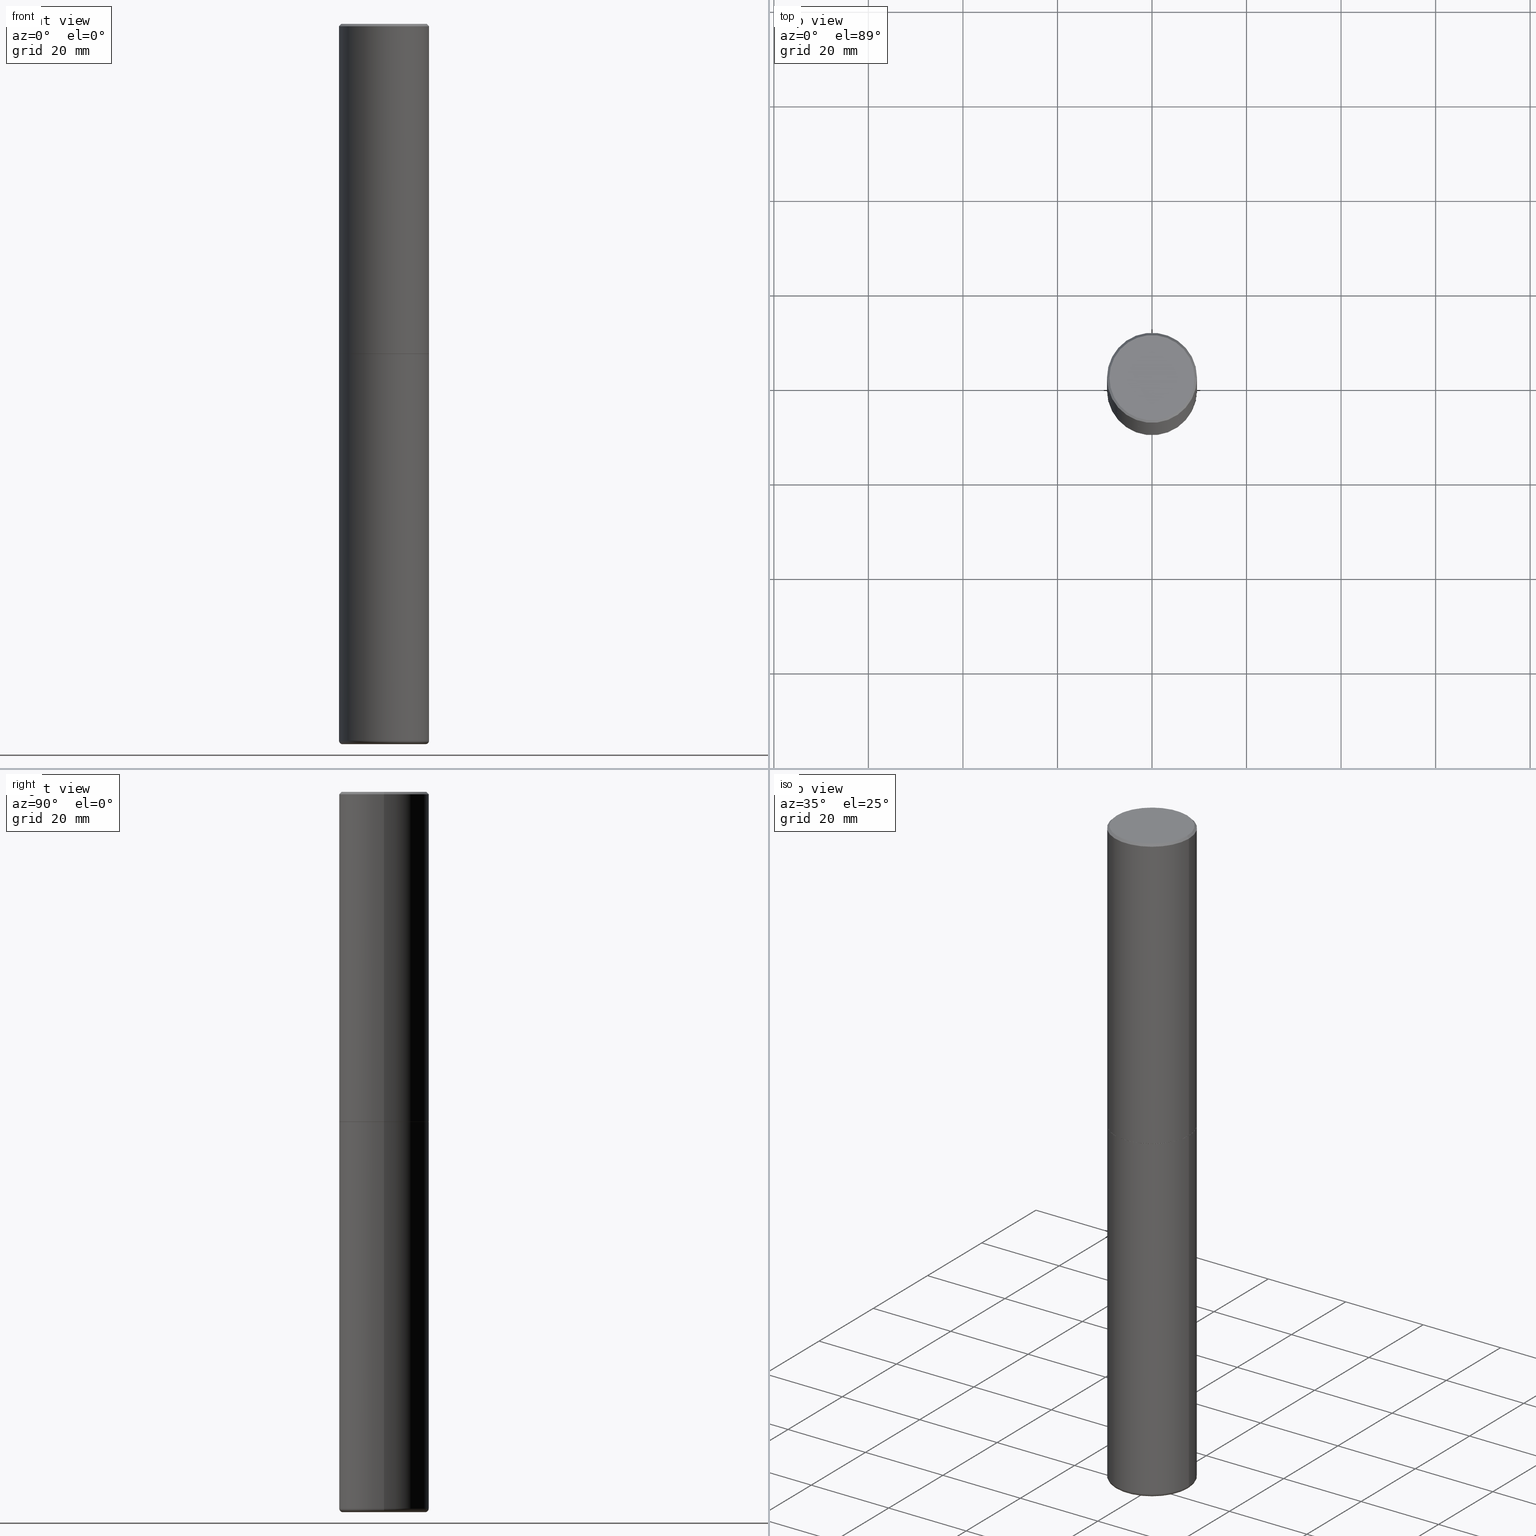
[diagram: canonical four-view strip — front | top / right | iso, engineering-drawing reading convention]
A machine part, canonical four-view strip (front | top / right | iso — engineering-drawing reading convention). The complete STEP part file that produces these views, byte-faithful:
ISO-10303-21;
HEADER;
FILE_DESCRIPTION (( 'STEP AP203' ),
    '1' );
FILE_NAME ('32571.STEP',
    '2022-04-26T19:38:33',
    ( '' ),
    ( '' ),
    'SwSTEP 2.0',
    'SolidWorks 2022',
    '' );
FILE_SCHEMA (( 'CONFIG_CONTROL_DESIGN' ));
ENDSEC;

DATA;
#1 = ORIENTED_EDGE ( 'NONE', *, *, #305, .F. ) ;
#2 = CARTESIAN_POINT ( 'NONE',  ( -0.3549999999999997602, 2.513866563967053491E-15, 4.268512490082953109E-18 ) ) ;
#3 = FACE_OUTER_BOUND ( 'NONE', #432, .T. ) ;
#4 = EDGE_CURVE ( 'NONE', #372, #195, #384, .T. ) ;
#5 = CONICAL_SURFACE ( 'NONE', #62, 0.3739999999999999991, 0.7853981633972775267 ) ;
#6 = DIRECTION ( 'NONE',  ( 1.000000000000000000, -6.982962677686266711E-15, 4.876176775795935793E-29 ) ) ;
#7 = CARTESIAN_POINT ( 'NONE',  ( 0.3750000000000000555, -1.221669320461216002E-14, -2.749000000000000554 ) ) ;
#8 = APPROVAL_DATE_TIME ( #313, #375 ) ;
#9 = ORIENTED_EDGE ( 'NONE', *, *, #211, .F. ) ;
#10 = VERTEX_POINT ( 'NONE', #377 ) ;
#11 = DIRECTION ( 'NONE',  ( 0.000000000000000000, 0.000000000000000000, 1.000000000000000000 ) ) ;
#12 = DIRECTION ( 'NONE',  ( 1.000000000000000000, -6.982962677686266711E-15, 0.000000000000000000 ) ) ;
#13 = AXIS2_PLACEMENT_3D ( 'NONE', #69, #159, #275 ) ;
#14 = PERSON_AND_ORGANIZATION_ROLE ( 'creator' ) ;
#15 = FACE_OUTER_BOUND ( 'NONE', #133, .T. ) ;
#16 = EDGE_CURVE ( 'NONE', #306, #195, #367, .T. ) ;
#17 = LOCAL_TIME ( 15, 38, 33.00000000000000000, #48 ) ;
#18 = DATE_AND_TIME ( #182, #17 ) ;
#19 = ADVANCED_FACE ( 'NONE', ( #315 ), #246, .F. ) ;
#20 = CARTESIAN_POINT ( 'NONE',  ( -0.3444764278068836449, -1.854340604125513887E-14, -5.999995430854690781 ) ) ;
#21 = CARTESIAN_POINT ( 'NONE',  ( -0.3749999999999997780, -1.817960833379320048E-14, -5.969999999999999751 ) ) ;
#22 = APPLICATION_PROTOCOL_DEFINITION ( 'international standard', 'config_control_design', 1994, #271 ) ;
#23 = DIRECTION ( 'NONE',  ( -2.445468806185136597E-29, 3.491481338843145583E-15, 1.000000000000000000 ) ) ;
#24 = AXIS2_PLACEMENT_3D ( 'NONE', #318, #242, #149 ) ;
#25 = CARTESIAN_POINT ( 'NONE',  ( 4.890937612370292426E-31, -6.982962677686317493E-17, -0.02000000000000007674 ) ) ;
#26 = ORIENTED_EDGE ( 'NONE', *, *, #141, .T. ) ;
#27 = CC_DESIGN_DATE_AND_TIME_ASSIGNMENT ( #151, #216, ( #132 ) ) ;
#28 = FACE_OUTER_BOUND ( 'NONE', #314, .T. ) ;
#29 = CIRCLE ( 'NONE', #338, 0.3750000000000000555 ) ;
#30 = CARTESIAN_POINT ( 'NONE',  ( -0.3739999999999999991, -6.944143850075879115E-15, -2.750000000000000888 ) ) ;
#31 = DESIGN_CONTEXT ( 'detailed design', #271, 'design' ) ;
#32 = EDGE_LOOP ( 'NONE', ( #111, #383, #127, #162 ) ) ;
#33 = VERTEX_POINT ( 'NONE', #2 ) ;
#34 = DIRECTION ( 'NONE',  ( 0.9998476951563914916, -6.920387862090554779E-15, -0.01745240643727449803 ) ) ;
#35 = VECTOR ( 'NONE', #241, 39.37007874015748143 ) ;
#36 = VECTOR ( 'NONE', #163, 39.37007874015748143 ) ;
#37 = ORIENTED_EDGE ( 'NONE', *, *, #240, .F. ) ;
#38 = DIRECTION ( 'NONE',  ( 1.000000000000000000, -6.982962677686266711E-15, 0.000000000000000000 ) ) ;
#39 = CC_DESIGN_PERSON_AND_ORGANIZATION_ASSIGNMENT ( #253, #353, ( #233 ) ) ;
#40 = CARTESIAN_POINT ( 'NONE',  ( 0.3549999999999997602, -2.538996582575039076E-15, 4.268512490117958041E-18 ) ) ;
#41 = DIRECTION ( 'NONE',  ( -1.000000000000000000, 6.982962677686266711E-15, 0.000000000000000000 ) ) ;
#42 = CIRCLE ( 'NONE', #316, 0.3750000000000000555 ) ;
#43 = ORIENTED_EDGE ( 'NONE', *, *, #323, .T. ) ;
#44 = DIRECTION ( 'NONE',  ( -2.445468806185136877E-29, 3.491481338843145188E-15, 1.000000000000000000 ) ) ;
#45 = VERTEX_POINT ( 'NONE', #40 ) ;
#46 = CARTESIAN_POINT ( 'NONE',  ( 2.478951750578623026E-15, 0.3549999999999997602, -1.237341619044265638E-15 ) ) ;
#47 = EDGE_CURVE ( 'NONE', #195, #129, #342, .T. ) ;
#48 = COORDINATED_UNIVERSAL_TIME_OFFSET ( 5, 0, .BEHIND. ) ;
#49 = DIRECTION ( 'NONE',  ( 1.000000000000000000, -6.982962677686265922E-15, 4.876176775795935793E-29 ) ) ;
#50 = CYLINDRICAL_SURFACE ( 'NONE', #416, 0.3749999999999998890 ) ;
#51 = CALENDAR_DATE ( 2022, 26, 4 ) ;
#52 = PRODUCT_DEFINITION_SHAPE ( 'NONE', 'NONE',  #132 ) ;
#53 = CARTESIAN_POINT ( 'NONE',  ( 0.3444764278068836449, -2.331215192322190793E-14, -5.999995430854690781 ) ) ;
#54 = PERSON_AND_ORGANIZATION ( #282, #248 ) ;
#55 = CARTESIAN_POINT ( 'NONE',  ( 0.3749999999999996669, -2.642516375941185662E-15, -0.02000000000000007674 ) ) ;
#56 = VECTOR ( 'NONE', #71, 39.37007874015748143 ) ;
#57 = VERTEX_POINT ( 'NONE', #378 ) ;
#58 = EDGE_CURVE ( 'NONE', #341, #179, #168, .T. ) ;
#59 = LOCAL_TIME ( 15, 38, 33.00000000000000000, #389 ) ;
#60 = DIRECTION ( 'NONE',  ( -2.445468806185136597E-29, 3.491481338843145583E-15, 1.000000000000000000 ) ) ;
#61 = DIRECTION ( 'NONE',  ( -2.445468806185136597E-29, 3.491481338843145583E-15, 1.000000000000000000 ) ) ;
#62 = AXIS2_PLACEMENT_3D ( 'NONE', #399, #85, #184 ) ;
#63 = EDGE_CURVE ( 'NONE', #306, #267, #442, .T. ) ;
#64 = PRODUCT_DEFINITION_FORMATION_WITH_SPECIFIED_SOURCE ( 'ANY', '', #120, .NOT_KNOWN. ) ;
#65 = ORIENTED_EDGE ( 'NONE', *, *, #58, .T. ) ;
#66 = EDGE_LOOP ( 'NONE', ( #198, #413, #190 ) ) ;
#67 = CARTESIAN_POINT ( 'NONE',  ( -0.3450000000000000289, -1.839277115452122915E-14, -5.969999999999999751 ) ) ;
#68 = ORIENTED_EDGE ( 'NONE', *, *, #211, .T. ) ;
#69 = CARTESIAN_POINT ( 'NONE',  ( -1.043851414335219820E-46, 1.490343170380447200E-32, 4.268512490100411279E-18 ) ) ;
#70 = ADVANCED_FACE ( 'NONE', ( #374 ), #135, .T. ) ;
#71 = DIRECTION ( 'NONE',  ( -2.445468806185136877E-29, 3.491481338843145188E-15, 1.000000000000000000 ) ) ;
#72 = CARTESIAN_POINT ( 'NONE',  ( -0.3749999999999996669, 2.548781377355484352E-15, -0.02000000000000007674 ) ) ;
#73 = FACE_OUTER_BOUND ( 'NONE', #376, .T. ) ;
#74 = CARTESIAN_POINT ( 'NONE',  ( 1.465921931284023718E-28, -2.092627166218079772E-14, -5.993982572441084677 ) ) ;
#75 = AXIS2_PLACEMENT_3D ( 'NONE', #270, #201, #346 ) ;
#76 = VECTOR ( 'NONE', #34, 39.37007874015747433 ) ;
#77 = ORIENTED_EDGE ( 'NONE', *, *, #146, .T. ) ;
#78 = AXIS2_PLACEMENT_3D ( 'NONE', #215, #291, #41 ) ;
#79 = EDGE_LOOP ( 'NONE', ( #281, #225, #174, #366 ) ) ;
#80 = COORDINATED_UNIVERSAL_TIME_OFFSET ( 5, 0, .BEHIND. ) ;
#81 = FACE_OUTER_BOUND ( 'NONE', #354, .T. ) ;
#82 = EDGE_CURVE ( 'NONE', #45, #33, #284, .T. ) ;
#83 = MECHANICAL_CONTEXT ( 'NONE', #176, 'mechanical' ) ;
#84 = PLANE ( 'NONE',  #173 ) ;
#85 = DIRECTION ( 'NONE',  ( -2.445468806185136597E-29, 3.491481338843145583E-15, 1.000000000000000000 ) ) ;
#86 =( NAMED_UNIT ( * ) PLANE_ANGLE_UNIT ( ) SI_UNIT ( $, .RADIAN. ) );
#87 = DIRECTION ( 'NONE',  ( -6.982962677686266711E-15, -1.000000000000000000, 3.491481338843145583E-15 ) ) ;
#88 = PERSON_AND_ORGANIZATION ( #282, #248 ) ;
#89 = LINE ( 'NONE', #398, #137 ) ;
#90 = DIRECTION ( 'NONE',  ( -0.7071067811865447972, 2.468850131082228267E-15, -0.7071067811865502373 ) ) ;
#91 = AXIS2_PLACEMENT_3D ( 'NONE', #100, #411, #6 ) ;
#92 = VECTOR ( 'NONE', #90, 39.37007874015748143 ) ;
#93 = ADVANCED_FACE ( 'NONE', ( #130 ), #206, .T. ) ;
#94 = EDGE_CURVE ( 'NONE', #405, #169, #244, .T. ) ;
#95 = ORIENTED_EDGE ( 'NONE', *, *, #382, .F. ) ;
#96 = CIRCLE ( 'NONE', #24, 0.3749999999999996669 ) ;
#97 = LOCAL_TIME ( 15, 38, 33.00000000000000000, #429 ) ;
#98 = ORIENTED_EDGE ( 'NONE', *, *, #263, .T. ) ;
#99 = ORIENTED_EDGE ( 'NONE', *, *, #94, .F. ) ;
#100 = CARTESIAN_POINT ( 'NONE',  ( 0.000000000000000000, 0.000000000000000000, 0.000000000000000000 ) ) ;
#101 = ORIENTED_EDGE ( 'NONE', *, *, #146, .F. ) ;
#102 = CARTESIAN_POINT ( 'NONE',  ( 0.3749999999999998335, -2.618611004132348439E-15, 1.828566290923475082E-29 ) ) ;
#103 = APPROVAL ( #260, 'UNSPECIFIED' ) ;
#104 = AXIS2_PLACEMENT_3D ( 'NONE', #254, #325, #347 ) ;
#105 = SHAPE_DEFINITION_REPRESENTATION ( #52, #365 ) ;
#106 = DIRECTION ( 'NONE',  ( -2.445468806185136597E-29, 3.491481338843145583E-15, 1.000000000000000000 ) ) ;
#107 = DIRECTION ( 'NONE',  ( 2.445468806185136597E-29, -3.491481338843145583E-15, -1.000000000000000000 ) ) ;
#108 = ORIENTED_EDGE ( 'NONE', *, *, #323, .F. ) ;
#109 = AXIS2_PLACEMENT_3D ( 'NONE', #437, #199, #38 ) ;
#110 = AXIS2_PLACEMENT_3D ( 'NONE', #25, #397, #297 ) ;
#111 = ORIENTED_EDGE ( 'NONE', *, *, #220, .T. ) ;
#112 = PLANE ( 'NONE',  #208 ) ;
#113 = CC_DESIGN_PERSON_AND_ORGANIZATION_ASSIGNMENT ( #257, #396, ( #132 ) ) ;
#114 = PERSON_AND_ORGANIZATION ( #282, #248 ) ;
#115 = CIRCLE ( 'NONE', #231, 0.3739999999999999991 ) ;
#116 = DIRECTION ( 'NONE',  ( 1.000000000000000000, -6.982962677686266711E-15, 0.000000000000000000 ) ) ;
#117 = CARTESIAN_POINT ( 'NONE',  ( -0.3739999999999999991, -6.938845395727655924E-15, -2.750000000000000888 ) ) ;
#118 = PERSON_AND_ORGANIZATION ( #282, #248 ) ;
#119 = DIRECTION ( 'NONE',  ( -0.9998476951563914916, 6.920964387254067832E-15, -0.01745240643727449803 ) ) ;
#120 = PRODUCT ( '32571', '32571', '', ( #83 ) ) ;
#121 = PERSON_AND_ORGANIZATION_ROLE ( 'design_owner' ) ;
#122 = DIRECTION ( 'NONE',  ( 1.000000000000000000, -6.982962677686266711E-15, 4.876231632511991546E-29 ) ) ;
#123 = FACE_OUTER_BOUND ( 'NONE', #161, .T. ) ;
#124 = FACE_OUTER_BOUND ( 'NONE', #400, .T. ) ;
#125 = ADVANCED_FACE ( 'NONE', ( #197 ), #207, .T. ) ;
#126 = ORIENTED_EDGE ( 'NONE', *, *, #16, .T. ) ;
#127 = ORIENTED_EDGE ( 'NONE', *, *, #16, .F. ) ;
#128 = UNCERTAINTY_MEASURE_WITH_UNIT (LENGTH_MEASURE( 1.000000000000000082E-05 ), #185, 'distance_accuracy_value', 'NONE');
#129 = VERTEX_POINT ( 'NONE', #381 ) ;
#130 = FACE_OUTER_BOUND ( 'NONE', #32, .T. ) ;
#131 = CIRCLE ( 'NONE', #110, 0.3749999999999996669 ) ;
#132 = PRODUCT_DEFINITION ( 'UNKNOWN', '', #64, #31 ) ;
#133 = EDGE_LOOP ( 'NONE', ( #415, #387, #65, #95 ) ) ;
#134 = DIRECTION ( 'NONE',  ( -2.445468806185136597E-29, 3.491481338843145583E-15, 1.000000000000000000 ) ) ;
#135 = CYLINDRICAL_SURFACE ( 'NONE', #91, 0.3749999999999998890 ) ;
#136 = DIRECTION ( 'NONE',  ( -1.000000000000000000, 6.982962677686265922E-15, -4.876176775795935793E-29 ) ) ;
#137 = VECTOR ( 'NONE', #431, 39.37007874015748143 ) ;
#138 = DATE_TIME_ROLE ( 'classification_date' ) ;
#139 = CARTESIAN_POINT ( 'NONE',  ( 1.606634848428436349E-18, -2.092787829702907951E-14, -5.993982572441084677 ) ) ;
#140 = ADVANCED_FACE ( 'NONE', ( #73 ), #268, .T. ) ;
#141 = EDGE_CURVE ( 'NONE', #245, #10, #348, .T. ) ;
#142 = ORIENTED_EDGE ( 'NONE', *, *, #255, .T. ) ;
#143 = ORIENTED_EDGE ( 'NONE', *, *, #4, .F. ) ;
#144 = LENGTH_MEASURE_WITH_UNIT ( LENGTH_MEASURE( 0.02539999999999999897 ), #183 );
#145 = CARTESIAN_POINT ( 'NONE',  ( 0.3749999999999997780, -2.346275459702592304E-14, -5.969999999999999751 ) ) ;
#146 = EDGE_CURVE ( 'NONE', #129, #267, #187, .T. ) ;
#147 = CARTESIAN_POINT ( 'NONE',  ( -0.3749999999999998335, 2.664535259100374514E-15, -1.844600658845588757E-29 ) ) ;
#148 = CC_DESIGN_APPROVAL ( #375, ( #233 ) ) ;
#149 = DIRECTION ( 'NONE',  ( 1.000000000000000000, -6.982962677686266711E-15, 0.000000000000000000 ) ) ;
#150 = DIRECTION ( 'NONE',  ( 2.445468806185136597E-29, -3.491481338843145583E-15, -1.000000000000000000 ) ) ;
#151 = DATE_AND_TIME ( #51, #97 ) ;
#152 = CIRCLE ( 'NONE', #401, 0.3444764278068817021 ) ;
#153 = DIRECTION ( 'NONE',  ( 1.000000000000000000, -6.982962677686266711E-15, 4.876176775795935793E-29 ) ) ;
#154 = LOCAL_TIME ( 15, 38, 33.00000000000000000, #80 ) ;
#155 = DIRECTION ( 'NONE',  ( -2.445468806185136597E-29, 3.491481338843145583E-15, 1.000000000000000000 ) ) ;
#156 = ORIENTED_EDGE ( 'NONE', *, *, #240, .T. ) ;
#157 = CIRCLE ( 'NONE', #194, 0.02999999999999974909 ) ;
#158 = FACE_OUTER_BOUND ( 'NONE', #300, .T. ) ;
#159 = DIRECTION ( 'NONE',  ( -2.445468806185136597E-29, 3.491481338843145583E-15, 1.000000000000000000 ) ) ;
#160 = EDGE_CURVE ( 'NONE', #33, #310, #261, .T. ) ;
#161 = EDGE_LOOP ( 'NONE', ( #156, #232, #9, #403 ) ) ;
#162 = ORIENTED_EDGE ( 'NONE', *, *, #289, .F. ) ;
#163 = DIRECTION ( 'NONE',  ( -0.7071067811864267805, 7.493145998869918709E-15, 0.7071067811866682540 ) ) ;
#164 = CLOSED_SHELL ( 'NONE', ( #203, #265, #424, #125, #350, #298, #426, #380 ) ) ;
#165 = CIRCLE ( 'NONE', #227, 0.3444764278068817021 ) ;
#166 = CALENDAR_DATE ( 2022, 26, 4 ) ;
#167 = ORIENTED_EDGE ( 'NONE', *, *, #410, .T. ) ;
#168 = LINE ( 'NONE', #102, #56 ) ;
#169 = VERTEX_POINT ( 'NONE', #53 ) ;
#170 = DIRECTION ( 'NONE',  ( -2.438088387897960049E-29, 3.491481338843145188E-15, 1.000000000000000000 ) ) ;
#171 = AXIS2_PLACEMENT_3D ( 'NONE', #222, #150, #299 ) ;
#172 = EDGE_CURVE ( 'NONE', #33, #45, #439, .T. ) ;
#173 = AXIS2_PLACEMENT_3D ( 'NONE', #217, #170, #49 ) ;
#174 = ORIENTED_EDGE ( 'NONE', *, *, #160, .T. ) ;
#175 = ORIENTED_EDGE ( 'NONE', *, *, #47, .T. ) ;
#176 = APPLICATION_CONTEXT ( 'configuration controlled 3d designs of mechanical parts and assemblies' ) ;
#177 = EDGE_CURVE ( 'NONE', #372, #169, #152, .T. ) ;
#178 = DIRECTION ( 'NONE',  ( -2.445468806185136597E-29, 3.491481338843145583E-15, 1.000000000000000000 ) ) ;
#179 = VERTEX_POINT ( 'NONE', #55 ) ;
#180 = APPROVAL_STATUS ( 'not_yet_approved' ) ;
#181 = CARTESIAN_POINT ( 'NONE',  ( 6.725039217009127883E-29, -9.601573681818654592E-15, -2.750000000000000888 ) ) ;
#182 = CALENDAR_DATE ( 2022, 26, 4 ) ;
#183 =( LENGTH_UNIT ( ) NAMED_UNIT ( * ) SI_UNIT ( $, .METRE. ) );
#184 = DIRECTION ( 'NONE',  ( 1.000000000000000000, -6.982962677686265133E-15, 0.000000000000000000 ) ) ;
#185 =( CONVERSION_BASED_UNIT ( 'INCH', #144 ) LENGTH_UNIT ( ) NAMED_UNIT ( #250 ) );
#186 = CARTESIAN_POINT ( 'NONE',  ( 6.725039217009127883E-29, -9.601573681818654592E-15, -2.750000000000000888 ) ) ;
#187 = CIRCLE ( 'NONE', #332, 0.3750000000000000555 ) ;
#188 = FACE_OUTER_BOUND ( 'NONE', #212, .T. ) ;
#189 = CC_DESIGN_APPROVAL ( #103, ( #132 ) ) ;
#190 = ORIENTED_EDGE ( 'NONE', *, *, #177, .F. ) ;
#191 = CARTESIAN_POINT ( 'NONE',  ( -1.606634848135274182E-18, -2.092787829702907951E-14, -5.993982572441084677 ) ) ;
#192 = DIRECTION ( 'NONE',  ( 1.000000000000000000, -6.982962677686267499E-15, 4.883557194083112901E-29 ) ) ;
#193 = CC_DESIGN_PERSON_AND_ORGANIZATION_ASSIGNMENT ( #118, #121, ( #120 ) ) ;
#194 = AXIS2_PLACEMENT_3D ( 'NONE', #427, #87, #393 ) ;
#195 = VERTEX_POINT ( 'NONE', #21 ) ;
#196 = ORIENTED_EDGE ( 'NONE', *, *, #141, .F. ) ;
#197 = FACE_OUTER_BOUND ( 'NONE', #79, .T. ) ;
#198 = ORIENTED_EDGE ( 'NONE', *, *, #255, .F. ) ;
#199 = DIRECTION ( 'NONE',  ( -2.445468806185136597E-29, 3.491481338843145583E-15, 1.000000000000000000 ) ) ;
#200 = APPROVAL_ROLE ( '' ) ;
#201 = DIRECTION ( 'NONE',  ( -2.445468806185136597E-29, 3.491481338843145583E-15, 1.000000000000000000 ) ) ;
#202 = DIRECTION ( 'NONE',  ( -2.445468806185136597E-29, 3.491481338843145583E-15, 1.000000000000000000 ) ) ;
#203 = ADVANCED_FACE ( 'NONE', ( #28 ), #285, .T. ) ;
#204 = DIRECTION ( 'NONE',  ( -1.000000000000000000, 7.105427357601050768E-15, 0.000000000000000000 ) ) ;
#205 = CARTESIAN_POINT ( 'NONE',  ( 6.725039217009125641E-29, -9.601573681818653015E-15, -2.750000000000000444 ) ) ;
#206 = TOROIDAL_SURFACE ( 'NONE', #75, 0.3450000000000000289, 0.02999999999999972133 ) ;
#207 = CONICAL_SURFACE ( 'NONE', #385, 0.3749999999999996669, 0.7853981633974445042 ) ;
#208 = AXIS2_PLACEMENT_3D ( 'NONE', #251, #327, #136 ) ;
#209 = COORDINATED_UNIVERSAL_TIME_OFFSET ( 5, 0, .BEHIND. ) ;
#210 = ORIENTED_EDGE ( 'NONE', *, *, #339, .T. ) ;
#211 = EDGE_CURVE ( 'NONE', #179, #310, #131, .T. ) ;
#212 = EDGE_LOOP ( 'NONE', ( #99, #142, #269 ) ) ;
#213 = AXIS2_PLACEMENT_3D ( 'NONE', #46, #349, #392 ) ;
#214 = DIRECTION ( 'NONE',  ( 1.000000000000000000, 0.000000000000000000, 0.000000000000000000 ) ) ;
#215 = CARTESIAN_POINT ( 'NONE',  ( 4.890937612370292426E-31, -6.982962677686317493E-17, -0.02000000000000007674 ) ) ;
#216 = DATE_TIME_ROLE ( 'creation_date' ) ;
#217 = CARTESIAN_POINT ( 'NONE',  ( 6.725039217009127883E-29, -9.601573681818654592E-15, -2.750000000000000888 ) ) ;
#218 = ADVANCED_FACE ( 'NONE', ( #158 ), #50, .T. ) ;
#219 = DIRECTION ( 'NONE',  ( 1.000000000000000000, -6.982962677686265133E-15, 0.000000000000000000 ) ) ;
#220 = EDGE_CURVE ( 'NONE', #169, #372, #165, .T. ) ;
#221 = PERSON_AND_ORGANIZATION_ROLE ( 'design_supplier' ) ;
#222 = CARTESIAN_POINT ( 'NONE',  ( 1.109363968618297551E-27, -1.583877735270742058E-13, -45.36406131259856522 ) ) ;
#223 = DATE_AND_TIME ( #295, #154 ) ;
#224 = CARTESIAN_POINT ( 'NONE',  ( -0.3749999999999996669, 2.548781377355484352E-15, -0.02000000000000007674 ) ) ;
#225 = ORIENTED_EDGE ( 'NONE', *, *, #172, .F. ) ;
#226 = AXIS2_PLACEMENT_3D ( 'NONE', #67, #337, #204 ) ;
#227 = AXIS2_PLACEMENT_3D ( 'NONE', #368, #155, #395 ) ;
#228 = CARTESIAN_POINT ( 'NONE',  ( 0.000000000000000000, 0.000000000000000000, 0.000000000000000000 ) ) ;
#229 = ADVANCED_FACE ( 'NONE', ( #188 ), #391, .F. ) ;
#230 = LOCAL_TIME ( 15, 38, 33.00000000000000000, #209 ) ;
#231 = AXIS2_PLACEMENT_3D ( 'NONE', #181, #178, #277 ) ;
#232 = ORIENTED_EDGE ( 'NONE', *, *, #388, .T. ) ;
#233 = SECURITY_CLASSIFICATION ( '', '', #362 ) ;
#234 = ORIENTED_EDGE ( 'NONE', *, *, #370, .F. ) ;
#235 = ORIENTED_EDGE ( 'NONE', *, *, #263, .F. ) ;
#236 = DIRECTION ( 'NONE',  ( -2.445468806185136877E-29, 3.491481338843145188E-15, 1.000000000000000000 ) ) ;
#237 = AXIS2_PLACEMENT_3D ( 'NONE', #417, #360, #425 ) ;
#238 = ORIENTED_EDGE ( 'NONE', *, *, #82, .T. ) ;
#239 = DIRECTION ( 'NONE',  ( -1.000000000000000000, 6.982962677686267499E-15, 0.000000000000000000 ) ) ;
#240 = EDGE_CURVE ( 'NONE', #341, #10, #29, .T. ) ;
#241 = DIRECTION ( 'NONE',  ( -2.445468806185136877E-29, 3.491481338843145188E-15, 1.000000000000000000 ) ) ;
#242 = DIRECTION ( 'NONE',  ( -2.445468806185136597E-29, 3.491481338843145583E-15, 1.000000000000000000 ) ) ;
#243 = MANIFOLD_SOLID_BREP ( 'Body-Move/Copy2[1]', #438 ) ;
#244 = LINE ( 'NONE', #139, #76 ) ;
#245 = VERTEX_POINT ( 'NONE', #117 ) ;
#246 = CONICAL_SURFACE ( 'NONE', #331, 2255.510300424765319, 1.553343034274962342 ) ;
#247 = AXIS2_PLACEMENT_3D ( 'NONE', #364, #361, #122 ) ;
#248 = ORGANIZATION ( 'UNSPECIFIED', 'UNSPECIFIED', '' ) ;
#249 = ORIENTED_EDGE ( 'NONE', *, *, #289, .T. ) ;
#250 = DIMENSIONAL_EXPONENTS ( 1.000000000000000000, 0.000000000000000000, 0.000000000000000000, 0.000000000000000000, 0.000000000000000000, 0.000000000000000000, 0.000000000000000000 ) ;
#251 = CARTESIAN_POINT ( 'NONE',  ( 2.618611004132417464E-15, 0.3749999999999903966, -2.750000000000001332 ) ) ;
#252 = AXIS2_PLACEMENT_3D ( 'NONE', #228, #60, #302 ) ;
#253 = PERSON_AND_ORGANIZATION ( #282, #248 ) ;
#254 = CARTESIAN_POINT ( 'NONE',  ( 0.000000000000000000, 0.000000000000000000, 0.000000000000000000 ) ) ;
#255 = EDGE_CURVE ( 'NONE', #405, #372, #430, .T. ) ;
#256 = CYLINDRICAL_SURFACE ( 'NONE', #252, 0.3749999999999998335 ) ;
#257 = PERSON_AND_ORGANIZATION ( #282, #248 ) ;
#258 = CC_DESIGN_APPROVAL ( #312, ( #64 ) ) ;
#259 = CARTESIAN_POINT ( 'NONE',  ( 0.000000000000000000, 0.000000000000000000, 0.000000000000000000 ) ) ;
#260 = APPROVAL_STATUS ( 'not_yet_approved' ) ;
#261 = LINE ( 'NONE', #224, #92 ) ;
#262 = DIRECTION ( 'NONE',  ( 1.000000000000000000, -6.982962677686268288E-15, 0.000000000000000000 ) ) ;
#263 = EDGE_CURVE ( 'NONE', #57, #341, #89, .T. ) ;
#264 = DIRECTION ( 'NONE',  ( 1.000000000000000000, -6.982962677686266711E-15, 0.000000000000000000 ) ) ;
#265 = ADVANCED_FACE ( 'NONE', ( #123 ), #256, .T. ) ;
#266 = ORIENTED_EDGE ( 'NONE', *, *, #82, .F. ) ;
#267 = VERTEX_POINT ( 'NONE', #433 ) ;
#268 = TOROIDAL_SURFACE ( 'NONE', #351, 0.3450000000000000289, 0.02999999999999972133 ) ;
#269 = ORIENTED_EDGE ( 'NONE', *, *, #220, .F. ) ;
#270 = CARTESIAN_POINT ( 'NONE',  ( 1.459944877292526494E-28, -2.084414359289357934E-14, -5.969999999999999751 ) ) ;
#271 = APPLICATION_CONTEXT ( 'configuration controlled 3d designs of mechanical parts and assemblies' ) ;
#272 = ORIENTED_EDGE ( 'NONE', *, *, #172, .T. ) ;
#273 = DIRECTION ( 'NONE',  ( 1.000000000000000000, -6.982962677686266711E-15, 0.000000000000000000 ) ) ;
#274 = VECTOR ( 'NONE', #119, 39.37007874015747433 ) ;
#275 = DIRECTION ( 'NONE',  ( 1.000000000000000000, -6.982962677686266711E-15, 4.876231632511991546E-29 ) ) ;
#276 = PRODUCT_RELATED_PRODUCT_CATEGORY ( 'detail', '', ( #120 ) ) ;
#277 = DIRECTION ( 'NONE',  ( 1.000000000000000000, -6.982962677686265133E-15, 0.000000000000000000 ) ) ;
#278 = PERSON_AND_ORGANIZATION ( #282, #248 ) ;
#279 = CARTESIAN_POINT ( 'NONE',  ( 4.890937612370292426E-31, -6.982962677686317493E-17, -0.02000000000000007674 ) ) ;
#280 = DIRECTION ( 'NONE',  ( -2.445468806185136597E-29, 3.491481338843145583E-15, 1.000000000000000000 ) ) ;
#281 = ORIENTED_EDGE ( 'NONE', *, *, #304, .F. ) ;
#282 = PERSON ( 'UNSPECIFIED', 'UNSPECIFIED', 'UNSPECIFIED', ('UNSPECIFIED'), ('UNSPECIFIED'), ('UNSPECIFIED') ) ;
#283 = ORIENTED_EDGE ( 'NONE', *, *, #370, .T. ) ;
#284 = CIRCLE ( 'NONE', #13, 0.3549999999999997602 ) ;
#285 = CONICAL_SURFACE ( 'NONE', #309, 0.3739999999999999991, 0.7853981633972775267 ) ;
#286 =( NAMED_UNIT ( * ) SI_UNIT ( $, .STERADIAN. ) SOLID_ANGLE_UNIT ( ) );
#287 = CARTESIAN_POINT ( 'NONE',  ( 6.722593748202942280E-29, -9.598082200479810007E-15, -2.749000000000000554 ) ) ;
#288 = APPROVAL_DATE_TIME ( #223, #103 ) ;
#289 = EDGE_CURVE ( 'NONE', #169, #306, #157, .T. ) ;
#290 = CC_DESIGN_SECURITY_CLASSIFICATION ( #233, ( #64 ) ) ;
#291 = DIRECTION ( 'NONE',  ( 2.445468806185136597E-29, -3.491481338843145583E-15, -1.000000000000000000 ) ) ;
#292 = APPROVAL_ROLE ( '' ) ;
#293 = LINE ( 'NONE', #147, #428 ) ;
#294 = DIRECTION ( 'NONE',  ( -2.445468806185136597E-29, 3.491481338843145583E-15, 1.000000000000000000 ) ) ;
#295 = CALENDAR_DATE ( 2022, 26, 4 ) ;
#296 = AXIS2_PLACEMENT_3D ( 'NONE', #419, #11, #214 ) ;
#297 = DIRECTION ( 'NONE',  ( 1.000000000000000000, -6.982962677686266711E-15, 0.000000000000000000 ) ) ;
#298 = ADVANCED_FACE ( 'NONE', ( #124 ), #5, .T. ) ;
#299 = DIRECTION ( 'NONE',  ( -1.000000000000000000, 6.982962677686267499E-15, 0.000000000000000000 ) ) ;
#300 = EDGE_LOOP ( 'NONE', ( #126, #175, #234, #404 ) ) ;
#301 = CIRCLE ( 'NONE', #355, 0.3750000000000000555 ) ;
#302 = DIRECTION ( 'NONE',  ( 1.000000000000000000, -6.982962677686265922E-15, 4.876176775795935793E-29 ) ) ;
#303 = DIRECTION ( 'NONE',  ( -1.000000000000000000, 6.982962677686266711E-15, 0.000000000000000000 ) ) ;
#304 = EDGE_CURVE ( 'NONE', #45, #179, #328, .T. ) ;
#305 = EDGE_CURVE ( 'NONE', #10, #341, #42, .T. ) ;
#306 = VERTEX_POINT ( 'NONE', #145 ) ;
#307 = VECTOR ( 'NONE', #236, 39.37007874015748143 ) ;
#308 = APPROVAL_STATUS ( 'not_yet_approved' ) ;
#309 = AXIS2_PLACEMENT_3D ( 'NONE', #186, #330, #219 ) ;
#310 = VERTEX_POINT ( 'NONE', #72 ) ;
#311 = CARTESIAN_POINT ( 'NONE',  ( 6.725039217009125641E-29, -9.601573681818653015E-15, -2.750000000000000444 ) ) ;
#312 = APPROVAL ( #180, 'UNSPECIFIED' ) ;
#313 = DATE_AND_TIME ( #166, #230 ) ;
#314 = EDGE_LOOP ( 'NONE', ( #167, #26, #37, #235 ) ) ;
#315 = FACE_OUTER_BOUND ( 'NONE', #66, .T. ) ;
#316 = AXIS2_PLACEMENT_3D ( 'NONE', #287, #106, #116 ) ;
#317 = CARTESIAN_POINT ( 'NONE',  ( 0.3749999999999998890, -2.618611004132349228E-15, 1.828566290923475362E-29 ) ) ;
#318 = CARTESIAN_POINT ( 'NONE',  ( 4.890937612370292426E-31, -6.982962677686317493E-17, -0.02000000000000007674 ) ) ;
#319 =( GEOMETRIC_REPRESENTATION_CONTEXT ( 3 ) GLOBAL_UNCERTAINTY_ASSIGNED_CONTEXT ( ( #128 ) ) GLOBAL_UNIT_ASSIGNED_CONTEXT ( ( #185, #86, #286 ) ) REPRESENTATION_CONTEXT ( 'NONE', 'WORKASPACE' ) );
#320 = EDGE_LOOP ( 'NONE', ( #340, #108 ) ) ;
#321 = EDGE_LOOP ( 'NONE', ( #283, #77 ) ) ;
#322 = CARTESIAN_POINT ( 'NONE',  ( 6.725039217009127883E-29, -9.601573681818654592E-15, -2.750000000000000888 ) ) ;
#323 = EDGE_CURVE ( 'NONE', #245, #57, #115, .T. ) ;
#324 = CALENDAR_DATE ( 2022, 26, 4 ) ;
#325 = DIRECTION ( 'NONE',  ( -2.445468806185136597E-29, 3.491481338843145583E-15, 1.000000000000000000 ) ) ;
#326 = PERSON_AND_ORGANIZATION ( #282, #248 ) ;
#327 = DIRECTION ( 'NONE',  ( 2.438088387897960049E-29, -3.491481338843145188E-15, -1.000000000000000000 ) ) ;
#328 = LINE ( 'NONE', #363, #407 ) ;
#329 = APPROVAL_DATE_TIME ( #423, #312 ) ;
#330 = DIRECTION ( 'NONE',  ( -2.445468806185136597E-29, 3.491481338843145583E-15, 1.000000000000000000 ) ) ;
#331 = AXIS2_PLACEMENT_3D ( 'NONE', #408, #345, #239 ) ;
#332 = AXIS2_PLACEMENT_3D ( 'NONE', #311, #134, #273 ) ;
#333 = CIRCLE ( 'NONE', #402, 0.3739999999999999991 ) ;
#334 = CARTESIAN_POINT ( 'NONE',  ( 1.467280166340849566E-28, -2.094887207997329190E-14, -5.999995430854690781 ) ) ;
#335 = ORIENTED_EDGE ( 'NONE', *, *, #63, .T. ) ;
#336 = DIRECTION ( 'NONE',  ( -2.445468806185136597E-29, 3.491481338843145583E-15, 1.000000000000000000 ) ) ;
#337 = DIRECTION ( 'NONE',  ( 7.105427357601001859E-15, 1.000000000000000000, -3.491481338843145583E-15 ) ) ;
#338 = AXIS2_PLACEMENT_3D ( 'NONE', #421, #23, #264 ) ;
#339 = EDGE_CURVE ( 'NONE', #195, #306, #422, .T. ) ;
#340 = ORIENTED_EDGE ( 'NONE', *, *, #410, .F. ) ;
#341 = VERTEX_POINT ( 'NONE', #7 ) ;
#342 = LINE ( 'NONE', #406, #35 ) ;
#343 = CC_DESIGN_PERSON_AND_ORGANIZATION_ASSIGNMENT ( #88, #14, ( #64 ) ) ;
#344 = ORIENTED_EDGE ( 'NONE', *, *, #304, .T. ) ;
#345 = DIRECTION ( 'NONE',  ( 2.445468806185136597E-29, -3.491481338843145583E-15, -1.000000000000000000 ) ) ;
#346 = DIRECTION ( 'NONE',  ( 1.000000000000000000, -6.982962677686267499E-15, 4.883557194083112901E-29 ) ) ;
#347 = DIRECTION ( 'NONE',  ( 1.000000000000000000, -6.982962677686265922E-15, 4.876176775795935793E-29 ) ) ;
#348 = LINE ( 'NONE', #30, #36 ) ;
#349 = DIRECTION ( 'NONE',  ( 2.438088387897960049E-29, -3.491481338843145188E-15, -1.000000000000000000 ) ) ;
#350 = ADVANCED_FACE ( 'NONE', ( #15 ), #409, .T. ) ;
#351 = AXIS2_PLACEMENT_3D ( 'NONE', #369, #61, #192 ) ;
#352 = ORIENTED_EDGE ( 'NONE', *, *, #47, .F. ) ;
#353 = PERSON_AND_ORGANIZATION_ROLE ( 'classification_officer' ) ;
#354 = EDGE_LOOP ( 'NONE', ( #266, #344, #68, #441 ) ) ;
#355 = AXIS2_PLACEMENT_3D ( 'NONE', #205, #202, #12 ) ;
#356 = CC_DESIGN_DATE_AND_TIME_ASSIGNMENT ( #18, #138, ( #233 ) ) ;
#357 = APPLICATION_PROTOCOL_DEFINITION ( 'international standard', 'config_control_design', 1994, #176 ) ;
#358 = DIRECTION ( 'NONE',  ( 0.7071067811865447972, -7.319954787623246579E-15, -0.7071067811865502373 ) ) ;
#359 = APPROVAL_ROLE ( '' ) ;
#360 = DIRECTION ( 'NONE',  ( -2.445468806185136597E-29, 3.491481338843145583E-15, 1.000000000000000000 ) ) ;
#361 = DIRECTION ( 'NONE',  ( -2.445468806185136597E-29, 3.491481338843145583E-15, 1.000000000000000000 ) ) ;
#362 = SECURITY_CLASSIFICATION_LEVEL ( 'unclassified' ) ;
#363 = CARTESIAN_POINT ( 'NONE',  ( 0.3749999999999996669, -2.642516375941185662E-15, -0.02000000000000007674 ) ) ;
#364 = CARTESIAN_POINT ( 'NONE',  ( -1.043851414335219820E-46, 1.490343170380447200E-32, 4.268512490100411279E-18 ) ) ;
#365 = ADVANCED_BREP_SHAPE_REPRESENTATION ( '32571', ( #243, #394, #296 ), #319 ) ;
#366 = ORIENTED_EDGE ( 'NONE', *, *, #382, .T. ) ;
#367 = CIRCLE ( 'NONE', #109, 0.3749999999999997780 ) ;
#368 = CARTESIAN_POINT ( 'NONE',  ( 1.467280166340849566E-28, -2.094887207997329190E-14, -5.999995430854690781 ) ) ;
#369 = CARTESIAN_POINT ( 'NONE',  ( 1.459944877292526494E-28, -2.084414359289357934E-14, -5.969999999999999751 ) ) ;
#370 = EDGE_CURVE ( 'NONE', #267, #129, #301, .T. ) ;
#371 = CONICAL_SURFACE ( 'NONE', #78, 0.3749999999999996669, 0.7853981633974445042 ) ;
#372 = VERTEX_POINT ( 'NONE', #20 ) ;
#373 = ORIENTED_EDGE ( 'NONE', *, *, #339, .F. ) ;
#374 = FACE_OUTER_BOUND ( 'NONE', #436, .T. ) ;
#375 = APPROVAL ( #308, 'UNSPECIFIED' ) ;
#376 = EDGE_LOOP ( 'NONE', ( #143, #435, #249, #373 ) ) ;
#377 = CARTESIAN_POINT ( 'NONE',  ( -0.3749999999999999445, -2.169420654527958984E-15, -2.749000000000000554 ) ) ;
#378 = CARTESIAN_POINT ( 'NONE',  ( 0.3739999999999999991, -1.221320172327331702E-14, -2.750000000000000888 ) ) ;
#379 = FACE_OUTER_BOUND ( 'NONE', #320, .T. ) ;
#380 = ADVANCED_FACE ( 'NONE', ( #3 ), #390, .F. ) ;
#381 = CARTESIAN_POINT ( 'NONE',  ( -0.3750000000000000555, -1.255832337825574285E-14, -2.750000000000000444 ) ) ;
#382 = EDGE_CURVE ( 'NONE', #310, #179, #96, .T. ) ;
#383 = ORIENTED_EDGE ( 'NONE', *, *, #4, .T. ) ;
#384 = CIRCLE ( 'NONE', #226, 0.02999999999999974909 ) ;
#385 = AXIS2_PLACEMENT_3D ( 'NONE', #279, #107, #303 ) ;
#386 = APPROVAL_PERSON_ORGANIZATION ( #326, #103, #292 ) ;
#387 = ORIENTED_EDGE ( 'NONE', *, *, #305, .T. ) ;
#388 = EDGE_CURVE ( 'NONE', #10, #310, #293, .T. ) ;
#389 = COORDINATED_UNIVERSAL_TIME_OFFSET ( 5, 0, .BEHIND. ) ;
#390 = PLANE ( 'NONE',  #213 ) ;
#391 = CONICAL_SURFACE ( 'NONE', #171, 2255.510300424765319, 1.553343034274962342 ) ;
#392 = DIRECTION ( 'NONE',  ( -1.000000000000000000, 6.982962677686265922E-15, -4.876176775795935793E-29 ) ) ;
#393 = DIRECTION ( 'NONE',  ( 1.000000000000000000, -6.982962677686196502E-15, 0.000000000000000000 ) ) ;
#394 = MANIFOLD_SOLID_BREP ( 'Body-Move/Copy2[2]', #164 ) ;
#395 = DIRECTION ( 'NONE',  ( 1.000000000000000000, -6.982962677686268288E-15, 0.000000000000000000 ) ) ;
#396 = PERSON_AND_ORGANIZATION_ROLE ( 'creator' ) ;
#397 = DIRECTION ( 'NONE',  ( -2.445468806185136597E-29, 3.491481338843145583E-15, 1.000000000000000000 ) ) ;
#398 = CARTESIAN_POINT ( 'NONE',  ( 0.3739999999999999991, -1.221320172327331702E-14, -2.750000000000000888 ) ) ;
#399 = CARTESIAN_POINT ( 'NONE',  ( 6.725039217009127883E-29, -9.601573681818654592E-15, -2.750000000000000888 ) ) ;
#400 = EDGE_LOOP ( 'NONE', ( #196, #43, #98, #1 ) ) ;
#401 = AXIS2_PLACEMENT_3D ( 'NONE', #334, #294, #262 ) ;
#402 = AXIS2_PLACEMENT_3D ( 'NONE', #322, #280, #412 ) ;
#403 = ORIENTED_EDGE ( 'NONE', *, *, #58, .F. ) ;
#404 = ORIENTED_EDGE ( 'NONE', *, *, #63, .F. ) ;
#405 = VERTEX_POINT ( 'NONE', #74 ) ;
#406 = CARTESIAN_POINT ( 'NONE',  ( -0.3749999999999998890, 2.664535259100374908E-15, -1.844600658845589038E-29 ) ) ;
#407 = VECTOR ( 'NONE', #358, 39.37007874015748143 ) ;
#408 = CARTESIAN_POINT ( 'NONE',  ( 1.109363968618297551E-27, -1.583877735270742058E-13, -45.36406131259856522 ) ) ;
#409 = CYLINDRICAL_SURFACE ( 'NONE', #104, 0.3749999999999998335 ) ;
#410 = EDGE_CURVE ( 'NONE', #57, #245, #333, .T. ) ;
#411 = DIRECTION ( 'NONE',  ( -2.445468806185136597E-29, 3.491481338843145583E-15, 1.000000000000000000 ) ) ;
#412 = DIRECTION ( 'NONE',  ( 1.000000000000000000, -6.982962677686265133E-15, 0.000000000000000000 ) ) ;
#413 = ORIENTED_EDGE ( 'NONE', *, *, #94, .T. ) ;
#414 = ADVANCED_FACE ( 'NONE', ( #420 ), #112, .F. ) ;
#415 = ORIENTED_EDGE ( 'NONE', *, *, #388, .F. ) ;
#416 = AXIS2_PLACEMENT_3D ( 'NONE', #259, #336, #153 ) ;
#417 = CARTESIAN_POINT ( 'NONE',  ( 1.459944877292526494E-28, -2.084414359289357934E-14, -5.969999999999999751 ) ) ;
#418 = APPROVAL_PERSON_ORGANIZATION ( #278, #375, #200 ) ;
#419 = CARTESIAN_POINT ( 'NONE',  ( 0.000000000000000000, 0.000000000000000000, 0.000000000000000000 ) ) ;
#420 = FACE_OUTER_BOUND ( 'NONE', #321, .T. ) ;
#421 = CARTESIAN_POINT ( 'NONE',  ( 6.722593748202942280E-29, -9.598082200479810007E-15, -2.749000000000000554 ) ) ;
#422 = CIRCLE ( 'NONE', #237, 0.3749999999999997780 ) ;
#423 = DATE_AND_TIME ( #324, #59 ) ;
#424 = ADVANCED_FACE ( 'NONE', ( #81 ), #371, .T. ) ;
#425 = DIRECTION ( 'NONE',  ( 1.000000000000000000, -6.982962677686266711E-15, 0.000000000000000000 ) ) ;
#426 = ADVANCED_FACE ( 'NONE', ( #379 ), #84, .F. ) ;
#427 = CARTESIAN_POINT ( 'NONE',  ( 0.3450000000000000289, -2.325326571669533946E-14, -5.969999999999999751 ) ) ;
#428 = VECTOR ( 'NONE', #44, 39.37007874015748143 ) ;
#429 = COORDINATED_UNIVERSAL_TIME_OFFSET ( 5, 0, .BEHIND. ) ;
#430 = LINE ( 'NONE', #191, #274 ) ;
#431 = DIRECTION ( 'NONE',  ( 0.7071067811864267805, -2.468850131080992517E-15, 0.7071067811866682540 ) ) ;
#432 = EDGE_LOOP ( 'NONE', ( #272, #238 ) ) ;
#433 = CARTESIAN_POINT ( 'NONE',  ( 0.3750000000000000555, -1.222018468595100303E-14, -2.750000000000000444 ) ) ;
#434 = CC_DESIGN_PERSON_AND_ORGANIZATION_ASSIGNMENT ( #54, #221, ( #64 ) ) ;
#435 = ORIENTED_EDGE ( 'NONE', *, *, #177, .T. ) ;
#436 = EDGE_LOOP ( 'NONE', ( #352, #210, #335, #101 ) ) ;
#437 = CARTESIAN_POINT ( 'NONE',  ( 1.459944877292526494E-28, -2.084414359289357934E-14, -5.969999999999999751 ) ) ;
#438 = CLOSED_SHELL ( 'NONE', ( #218, #93, #19, #229, #140, #70, #414 ) ) ;
#439 = CIRCLE ( 'NONE', #247, 0.3549999999999997602 ) ;
#440 = APPROVAL_PERSON_ORGANIZATION ( #114, #312, #359 ) ;
#441 = ORIENTED_EDGE ( 'NONE', *, *, #160, .F. ) ;
#442 = LINE ( 'NONE', #317, #307 ) ;
ENDSEC;
END-ISO-10303-21;
